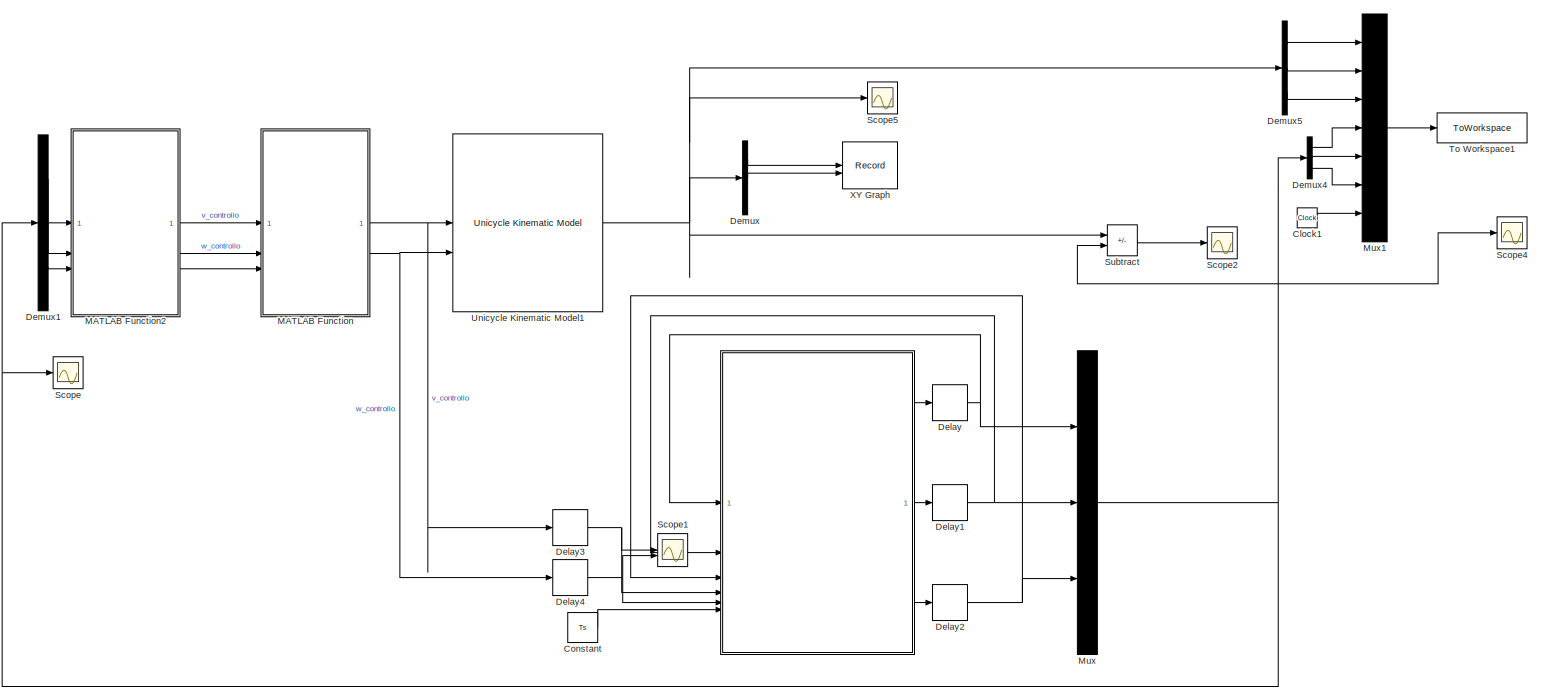
[diagram: root canvas - part 1/1, most of the canvas]
MODEL slx_6f82d08e3ea7
KIND model
CONFIG AbsTol = auto
CONFIG EnableMultiTasking = off
CONFIG FixedStep = auto
CONFIG MaxStep = auto
CONFIG MinStep = auto
CONFIG RelTol = 1e-3
CONFIG SampleTimeConstraint = Unconstrained
CONFIG SolverName = VariableStepAuto
CONFIG StartTime = 0.0
CONFIG StopTime = 4
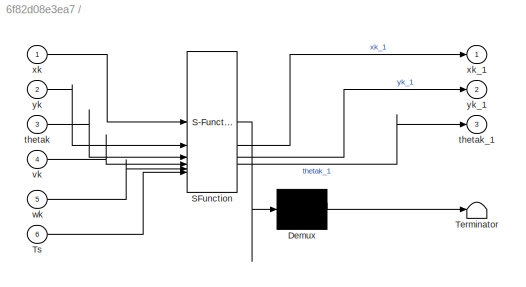
BLOCK [SubSystem]  
  ErrorFcn = Stateflow.Translate.translate
  LibrarySourceBlock = simulink/User-Defined\nFunctions/MATLAB Function
  PermitHierarchicalResolution = ExplicitOnly
  SFBlockType = MATLAB Function
  SystemSampleTime = Ts
  TreatAsAtomicUnit = on
BLOCK [Demux]  / Demux 
  Outputs = 1
BLOCK [S-Function]  / SFunction 
  EnableBusSupport = on
  FunctionName = sf_sfun
  PortCounts = [6 4]
  SFcnIsStateOwnerBlock = off
  SFunctionDeploymentMode = off
  Tag = Stateflow S-Function 4
BLOCK [Terminator]  / Terminator 
BLOCK [Inport]  /Ts
  Port = 6
BLOCK [Inport]  /thetak
  Port = 3
BLOCK [Outport]  /thetak_1
  Port = 3
BLOCK [Inport]  /vk
  Port = 4
BLOCK [Inport]  /wk
  Port = 5
BLOCK [Inport]  /xk
BLOCK [Outport]  /xk_1
BLOCK [Inport]  /yk
  Port = 2
BLOCK [Outport]  /yk_1
  Port = 2
BLOCK [Clock] Clock1
BLOCK [Constant] Constant
  Value = Ts
BLOCK [Delay] Delay
  DelayLength = 1
  InitialCondition = 2
  InputPortMap = u0
  InputProcessing = Columns as channels (frame based)
BLOCK [Delay] Delay1
  DelayLength = 1
  InitialCondition = 1
  InputPortMap = u0
  InputProcessing = Columns as channels (frame based)
BLOCK [Delay] Delay2
  DelayLength = 1
  InitialCondition = pi/4
  InputPortMap = u0
  InputProcessing = Columns as channels (frame based)
BLOCK [Delay] Delay3
  DelayLength = 1
  InitialCondition = 2
  InputPortMap = u0
  InputProcessing = Columns as channels (frame based)
BLOCK [Delay] Delay4
  DelayLength = 1
  InitialCondition = 2
  InputPortMap = u0
  InputProcessing = Columns as channels (frame based)
BLOCK [Demux] Demux
  Outputs = 3
BLOCK [Demux] Demux1
  Outputs = 3
BLOCK [Demux] Demux4
  NameLocation = right
  Outputs = 3
BLOCK [Demux] Demux5
  NameLocation = right
  Outputs = 3
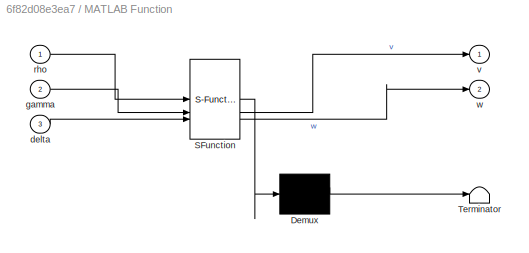
BLOCK [SubSystem] MATLAB Function
  ErrorFcn = Stateflow.Translate.translate
  PermitHierarchicalResolution = ExplicitOnly
  SFBlockType = MATLAB Function
  SystemSampleTime = Ts
  TreatAsAtomicUnit = on
BLOCK [Demux] MATLAB Function/ Demux 
  Outputs = 1
BLOCK [S-Function] MATLAB Function/ SFunction 
  EnableBusSupport = on
  FunctionName = sf_sfun
  PortCounts = [3 3]
  SFcnIsStateOwnerBlock = off
  SFunctionDeploymentMode = off
  Tag = Stateflow S-Function 2
BLOCK [Terminator] MATLAB Function/ Terminator 
BLOCK [Inport] MATLAB Function/delta
  Port = 3
BLOCK [Inport] MATLAB Function/gamma
  Port = 2
BLOCK [Inport] MATLAB Function/rho
BLOCK [Outport] MATLAB Function/v
BLOCK [Outport] MATLAB Function/w
  Port = 2
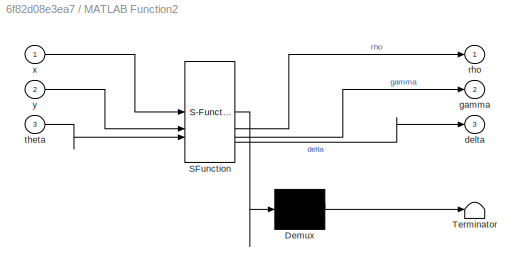
BLOCK [SubSystem] MATLAB Function2
  ErrorFcn = Stateflow.Translate.translate
  PermitHierarchicalResolution = ExplicitOnly
  SFBlockType = MATLAB Function
  SystemSampleTime = Ts
  TreatAsAtomicUnit = on
BLOCK [Demux] MATLAB Function2/ Demux 
  Outputs = 1
BLOCK [S-Function] MATLAB Function2/ SFunction 
  EnableBusSupport = on
  FunctionName = sf_sfun
  PortCounts = [3 4]
  SFcnIsStateOwnerBlock = off
  SFunctionDeploymentMode = off
  Tag = Stateflow S-Function 3
BLOCK [Terminator] MATLAB Function2/ Terminator 
BLOCK [Outport] MATLAB Function2/delta
  Port = 3
BLOCK [Outport] MATLAB Function2/gamma
  Port = 2
BLOCK [Outport] MATLAB Function2/rho
BLOCK [Inport] MATLAB Function2/theta
  Port = 3
BLOCK [Inport] MATLAB Function2/x
BLOCK [Inport] MATLAB Function2/y
  Port = 2
BLOCK [Mux] Mux
  DisplayOption = bar
  Inputs = 3
BLOCK [Mux] Mux1
  DisplayOption = bar
  Inputs = 7
BLOCK [Scope] Scope
  Floating = off
  NumInputPorts = 1
  ScopeSpecificationString = Simulink.scopes.TimeScopeBlockCfg('CurrentConfiguration', extmgr.ConfigurationSet(extmgr.Configuration('Core','General UI',true),extmgr.Configuration('Core','Source UI',true),extmgr.Configuration('Sources','WiredSimulink',true,'DataLoggingVariableName','ScopeData1'),extmgr.Configuration('Visuals','Time Domain',true,'SerializedDisplays',{struct('MinYLimReal','-0.25839','MaxYLimReal','2.32547','YLab...<+1589ch>
BLOCK [Scope] Scope1
  Floating = off
  NumInputPorts = 2
  ScopeSpecificationString = Simulink.scopes.TimeScopeBlockCfg('CurrentConfiguration', extmgr.ConfigurationSet(extmgr.Configuration('Core','General UI',true),extmgr.Configuration('Core','Source UI',true),extmgr.Configuration('Sources','WiredSimulink',true,'DataLoggingVariableName','ScopeData1'),extmgr.Configuration('Visuals','Time Domain',true,'SerializedDisplays',{struct('MinYLimReal','-8.41135','MaxYLimReal','1.09377','YLab...<+1550ch>
BLOCK [Scope] Scope2
  Floating = off
  NumInputPorts = 1
  ScopeSpecificationString = Simulink.scopes.TimeScopeBlockCfg('CurrentConfiguration', extmgr.ConfigurationSet(extmgr.Configuration('Core','General UI',true),extmgr.Configuration('Core','Source UI',true),extmgr.Configuration('Sources','WiredSimulink',true,'DataLoggingVariableName','ScopeData2'),extmgr.Configuration('Visuals','Time Domain',true,'SerializedDisplays',{struct('MinYLimReal','0.01966','MaxYLimReal','0.02947','YLabe...<+1582ch>
BLOCK [Scope] Scope4
  Floating = off
  NumInputPorts = 1
  ScopeSpecificationString = Simulink.scopes.TimeScopeBlockCfg('CurrentConfiguration', extmgr.ConfigurationSet(extmgr.Configuration('Core','General UI',true),extmgr.Configuration('Core','Source UI',true),extmgr.Configuration('Sources','WiredSimulink',true,'DataLoggingVariableName','ScopeData1'),extmgr.Configuration('Visuals','Time Domain',true,'SerializedDisplays',{struct('MinYLimReal','-0.26582','MaxYLimReal','2.39242','YLab...<+1558ch>
BLOCK [Scope] Scope5
  Floating = off
  NumInputPorts = 1
  ScopeSpecificationString = Simulink.scopes.TimeScopeBlockCfg('CurrentConfiguration', extmgr.ConfigurationSet(extmgr.Configuration('Core','General UI',true),extmgr.Configuration('Core','Source UI',true),extmgr.Configuration('Sources','WiredSimulink',true,'DataLoggingVariableName','ScopeData1'),extmgr.Configuration('Visuals','Time Domain',true,'SerializedDisplays',{struct('MinYLimReal','-0.2881','MaxYLimReal','2.25423','YLabe...<+1626ch>
BLOCK [Sum] Subtract
  IconShape = rectangular
  Inputs = +-
BLOCK [ToWorkspace] To Workspace1
  FixptAsFi = on
  MaxDataPoints = inf
  SampleTime = -1
  VariableName = out1
BLOCK [Reference] Unicycle Kinematic Model1  REF=robotmobilelib/Unicycle Kinematic Model
  SourceBlock = robotmobilelib/Unicycle Kinematic Model
  SourceType = Unicycle Kinematic Model
BLOCK [Record] XY Graph
  CompatibilityTag = XY
  FileSettingsInternal = {"entries":[{"content":{"excelSettings":{"content":{},"type":"Streamout.ExcelSettings"}},"type":"Streamout.FileSettingStorage","uuid":""}],"packageUris":["http:\/\/schema.mathworks.com\/mf0\/streamout_blocks\/R2020a"],"version":"1.0"}
  Layout = [1 1]
  SignalsInternal = {"entries":[{"content":{"signals":[{"content":{"blockPath":[],"dimensions":[1],"domain":"","lineColor":"#a2142f","plots":[ 1 ],"port":1,"sid":[""],"signalID":1,"signalName":"Demux:1"},"type":"RecordBlkView.Signal","uuid":""},{"content":{"blockPath":[],"dimensions":[1],"domain":"","lineColor":"#139fff","plots":[ 1 ],"port":2,"sid":[""],"signalID":2,"signalName":"Demux:2"},"type":"RecordBlkView.Sign...<+160ch>
  VisualizationBindings = {"xyplotplugin":{"info":[{"series":[{"bindingParametersList":[{"parameter":"X-Axis","signalID":1,"signalName":"Demux:1"},{"parameter":"Y-Axis","signalID":2,"signalName":"Demux:2"}],"seriesID":0}],"subplotID":1}]}}
LINE  :1 -> Delay:1
LINE  :2 -> Delay1:1
LINE  :3 -> Delay2:1
LINE Clock1:1 -> Mux1:7
LINE Constant:1 ->  :6
NET Delay1:1 ->  :2, Mux:2
NET Delay2:1 ->  :3, Mux:3
NET Delay3:1 ->  :4, Scope1:1
NET Delay4:1 ->  :5, Scope1:2
NET Delay:1 ->  :1, Mux:1
LINE Demux1:1 -> MATLAB Function2:1
LINE Demux1:2 -> MATLAB Function2:2
LINE Demux1:3 -> MATLAB Function2:3
LINE Demux4:1 -> Mux1:4
LINE Demux4:2 -> Mux1:5
LINE Demux4:3 -> Mux1:6
LINE Demux5:1 -> Mux1:1
LINE Demux5:2 -> Mux1:2
LINE Demux5:3 -> Mux1:3
LINE Demux:1 -> XY Graph:1
LINE Demux:2 -> XY Graph:2
LINE MATLAB Function2:1 -> MATLAB Function:1
LINE MATLAB Function2:2 -> MATLAB Function:2
LINE MATLAB Function2:3 -> MATLAB Function:3
NET MATLAB Function:1 -> Delay3:1, Unicycle Kinematic Model1:1
NET MATLAB Function:2 -> Delay4:1, Unicycle Kinematic Model1:2
LINE Mux1:1 -> To Workspace1:1
NET Mux:1 -> Demux1:1, Demux4:1, Scope4:1, Scope:1, Subtract:2
LINE Subtract:1 -> Scope2:1
NET Unicycle Kinematic Model1:1 -> Demux5:1, Demux:1, Scope5:1, Subtract:1
note: NET lines group one-source signal fan-out (src -> all destinations, sorted); 1:1 wires keep LINE
CHART MATLAB Function states=1 transitions=1
  STATE_LABEL 'eML_blk_kernel()'
  STATE_LABEL 'SCRIPT:\nfunction [v,w] = fcn_1(rho,gamma,delta)\nk1=3;\nk2=3;\nk3=1;\n\nv=k1*rho*cos(gamma)*(1+k3*delta/gamma);\n\nw=k2*gamma+k1*rho*sin(gamma);\n'
CHART MATLAB Function2 states=1 transitions=1
  STATE_LABEL 'eML_blk_kernel()'
  STATE_LABEL 'SCRIPT:\nfunction [rho,gamma,delta] = polar_coordinates(x,y,theta)\n\nrho=sqrt(x^2+y^2);\ngamma=atan2(y,x)-theta;\ndelta=gamma+theta;\n\nend '
CHART   states=1 transitions=1
  STATE_LABEL 'eML_blk_kernel()'
  STATE_LABEL 'SCRIPT:\nfunction [xk_1,yk_1,thetak_1] = RungeKutta(xk, yk, thetak, vk, wk, Ts)\n\nxk_1=xk+vk*Ts*cos(thetak+wk*Ts/2);\nyk_1=yk+vk*Ts*sin(thetak+wk*Ts/2);\nthetak_1=thetak+wk*Ts;\n\nend\n\n'
CHART  states=0 transitions=0
CHART  states=0 transitions=0
CHART  states=0 transitions=0
